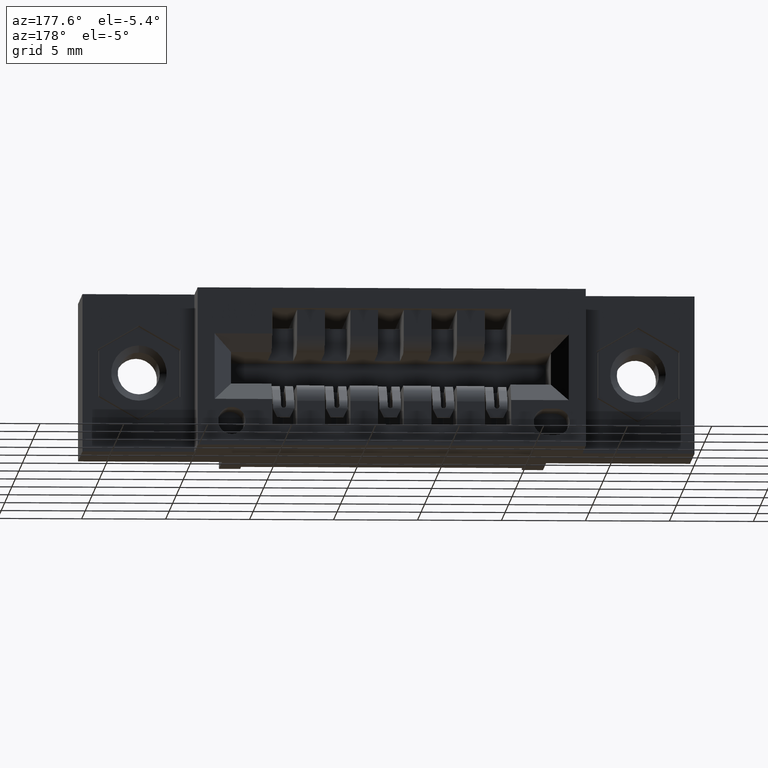
[diagram: clean part render]
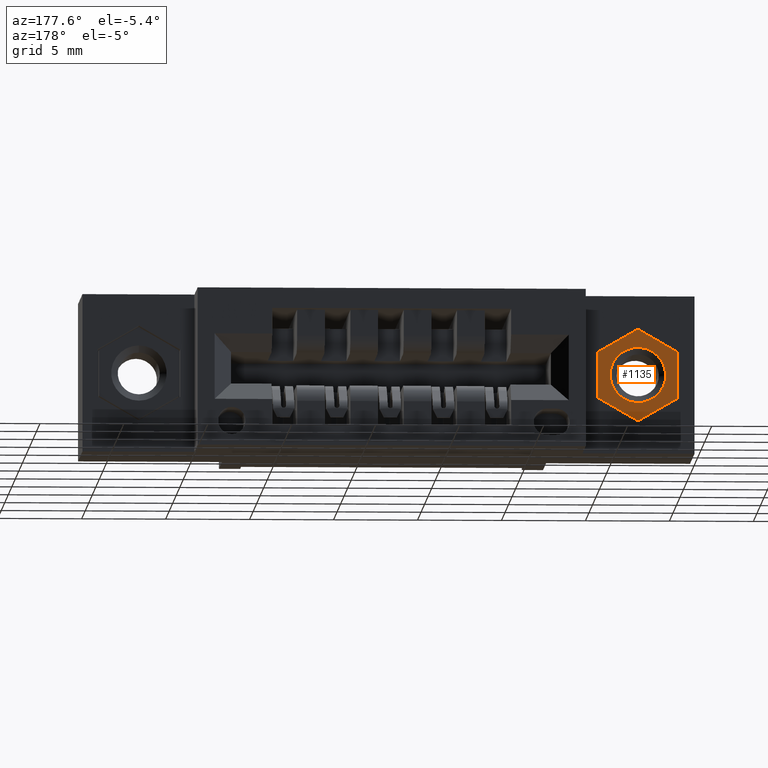
[diagram: same view with one face highlighted and labeled with its STEP entity id]
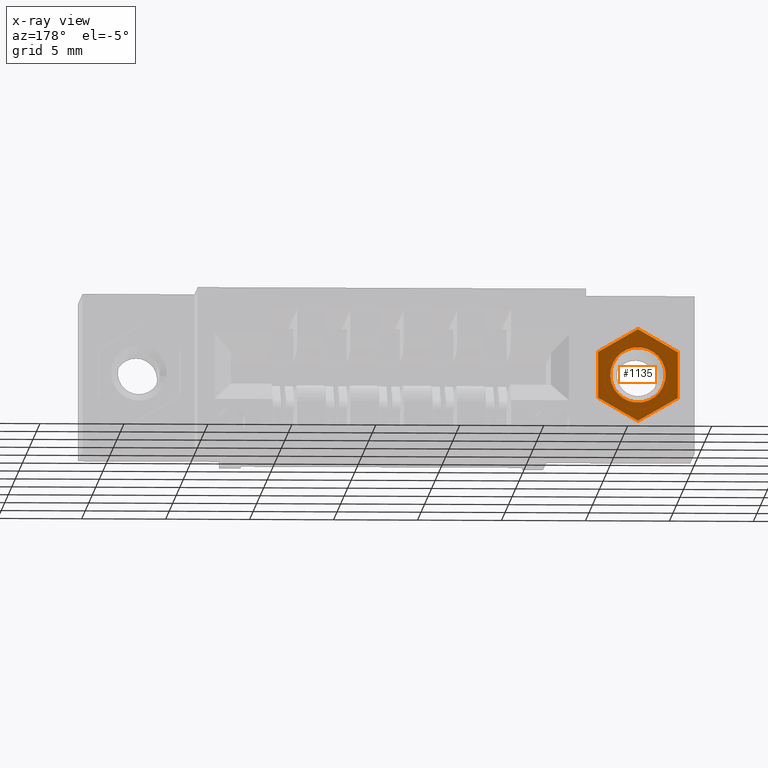
[diagram: x-ray of the same camera — body ghosted, the highlighted face saturated]
A machine part, auxiliary view. The second image highlights one B-rep face of the part: STEP entity #1135.
The next image is the same camera in x-ray: the body ghosted, the highlighted face saturated — about 0% of this face is hidden behind the body in this view.
In plain terms, the highlighted planar face has unit normal (0, -1, 0).
Its self-contained STEP definition (entity closure, byte-faithful):
#88 = CARTESIAN_POINT ( 'NONE',  ( -0.09349999999999997202, 0.0000000000000000000, -0.05398225016922977848 ) ) ;
#253 = EDGE_CURVE ( 'NONE', #3482, #256, #4407, .T. ) ;
#256 = VERTEX_POINT ( 'NONE', #808 ) ;
#509 = AXIS2_PLACEMENT_3D ( 'NONE', #3133, #6703, #867 ) ;
#790 = DIRECTION ( 'NONE',  ( 0.8660254037844389297, 0.0000000000000000000, -0.4999999999999994449 ) ) ;
#808 = CARTESIAN_POINT ( 'NONE',  ( -5.292955487724510356E-16, 0.0000000000000000000, 0.1079645003384601676 ) ) ;
#853 = DIRECTION ( 'NONE',  ( 0.8660254037844389297, 0.0000000000000000000, 0.4999999999999994449 ) ) ;
#867 = DIRECTION ( 'NONE',  ( 0.0000000000000000000, 0.0000000000000000000, 1.000000000000000000 ) ) ;
#1135 = ADVANCED_FACE ( 'NONE', ( #4564, #1711 ), #3751, .F. ) ;
#1139 = VECTOR ( 'NONE', #1918, 39.37007874015748143 ) ;
#1256 = CARTESIAN_POINT ( 'NONE',  ( 1.707404996040164512E-17, -6.829619984160658046E-17, 2.048885995248197414E-16 ) ) ;
#1495 = VERTEX_POINT ( 'NONE', #4940 ) ;
#1711 = FACE_OUTER_BOUND ( 'NONE', #6777, .T. ) ;
#1730 = ORIENTED_EDGE ( 'NONE', *, *, #4528, .F. ) ;
#1918 = DIRECTION ( 'NONE',  ( -1.276756478318928838E-15, 0.0000000000000000000, -1.000000000000000000 ) ) ;
#1929 = CARTESIAN_POINT ( 'NONE',  ( 0.09349999999999944467, 0.0000000000000000000, -0.05398225016923008379 ) ) ;
#2136 = VERTEX_POINT ( 'NONE', #7571 ) ;
#2165 = VECTOR ( 'NONE', #853, 39.37007874015748143 ) ;
#2294 = LINE ( 'NONE', #88, #7813 ) ;
#2392 = CARTESIAN_POINT ( 'NONE',  ( 3.414809992080329023E-17, 0.0000000000000000000, -0.1079645003384598484 ) ) ;
#2747 = VECTOR ( 'NONE', #790, 39.37007874015748143 ) ;
#2759 = CARTESIAN_POINT ( 'NONE',  ( -0.09349999999999994427, 0.0000000000000000000, 0.05398225016923036135 ) ) ;
#2913 = LINE ( 'NONE', #8790, #2747 ) ;
#3133 = CARTESIAN_POINT ( 'NONE',  ( 3.414809992080329023E-17, 0.0000000000000000000, -0.1079645003384598484 ) ) ;
#3135 = ORIENTED_EDGE ( 'NONE', *, *, #6424, .F. ) ;
#3283 = AXIS2_PLACEMENT_3D ( 'NONE', #1256, #4242, #7189 ) ;
#3381 = CARTESIAN_POINT ( 'NONE',  ( 1.707404996040164512E-17, -6.829619984160658046E-17, -0.06500000000000000222 ) ) ;
#3404 = VERTEX_POINT ( 'NONE', #6518 ) ;
#3482 = VERTEX_POINT ( 'NONE', #2759 ) ;
#3491 = DIRECTION ( 'NONE',  ( 0.0000000000000000000, 0.0000000000000000000, -1.000000000000000000 ) ) ;
#3532 = DIRECTION ( 'NONE',  ( -0.8660254037844384856, 0.0000000000000000000, -0.5000000000000002220 ) ) ;
#3595 = ORIENTED_EDGE ( 'NONE', *, *, #8548, .F. ) ;
#3653 = VECTOR ( 'NONE', #3532, 39.37007874015748854 ) ;
#3751 = PLANE ( 'NONE',  #509 ) ;
#3966 = CARTESIAN_POINT ( 'NONE',  ( -0.09349999999999994427, 0.0000000000000000000, 0.05398225016923036135 ) ) ;
#3971 = EDGE_CURVE ( 'NONE', #7423, #3404, #7307, .T. ) ;
#4242 = DIRECTION ( 'NONE',  ( 0.0000000000000000000, -1.000000000000000000, 0.0000000000000000000 ) ) ;
#4254 = EDGE_CURVE ( 'NONE', #1495, #7656, #7938, .T. ) ;
#4407 = LINE ( 'NONE', #3966, #2165 ) ;
#4412 = DIRECTION ( 'NONE',  ( -0.8660254037844385966, 0.0000000000000000000, 0.5000000000000000000 ) ) ;
#4528 = EDGE_CURVE ( 'NONE', #6773, #2136, #8412, .T. ) ;
#4564 = FACE_BOUND ( 'NONE', #5037, .T. ) ;
#4795 = CARTESIAN_POINT ( 'NONE',  ( 0.09349999999999998590, 0.0000000000000000000, 0.05398225016923022257 ) ) ;
#4820 = ORIENTED_EDGE ( 'NONE', *, *, #4254, .F. ) ;
#4940 = CARTESIAN_POINT ( 'NONE',  ( 2.503425415485946340E-17, -6.829619984160658046E-17, 0.06500000000000040468 ) ) ;
#5037 = EDGE_LOOP ( 'NONE', ( #3135, #4820 ) ) ;
#5268 = CARTESIAN_POINT ( 'NONE',  ( 3.414809992080329023E-17, 0.0000000000000000000, -0.1079645003384598484 ) ) ;
#6074 = ORIENTED_EDGE ( 'NONE', *, *, #3971, .F. ) ;
#6080 = EDGE_CURVE ( 'NONE', #3404, #3482, #2294, .T. ) ;
#6424 = EDGE_CURVE ( 'NONE', #7656, #1495, #7530, .T. ) ;
#6448 = AXIS2_PLACEMENT_3D ( 'NONE', #9222, #7815, #3491 ) ;
#6518 = CARTESIAN_POINT ( 'NONE',  ( -0.09349999999999997202, 0.0000000000000000000, -0.05398225016922977848 ) ) ;
#6588 = DIRECTION ( 'NONE',  ( 0.0000000000000000000, 0.0000000000000000000, 1.000000000000000000 ) ) ;
#6703 = DIRECTION ( 'NONE',  ( 0.0000000000000000000, 1.000000000000000000, 0.0000000000000000000 ) ) ;
#6773 = VERTEX_POINT ( 'NONE', #4795 ) ;
#6777 = EDGE_LOOP ( 'NONE', ( #3595, #1730, #7177, #7848, #9041, #6074 ) ) ;
#6782 = CARTESIAN_POINT ( 'NONE',  ( 0.09349999999999998590, 0.0000000000000000000, 0.05398225016923022257 ) ) ;
#7059 = LINE ( 'NONE', #1929, #3653 ) ;
#7177 = ORIENTED_EDGE ( 'NONE', *, *, #8674, .F. ) ;
#7189 = DIRECTION ( 'NONE',  ( 0.0000000000000000000, 0.0000000000000000000, -1.000000000000000000 ) ) ;
#7196 = VECTOR ( 'NONE', #4412, 39.37007874015748143 ) ;
#7307 = LINE ( 'NONE', #5268, #7196 ) ;
#7423 = VERTEX_POINT ( 'NONE', #2392 ) ;
#7530 = CIRCLE ( 'NONE', #3283, 0.06500000000000019651 ) ;
#7571 = CARTESIAN_POINT ( 'NONE',  ( 0.09349999999999944467, 0.0000000000000000000, -0.05398225016923008379 ) ) ;
#7656 = VERTEX_POINT ( 'NONE', #3381 ) ;
#7813 = VECTOR ( 'NONE', #6588, 39.37007874015748143 ) ;
#7815 = DIRECTION ( 'NONE',  ( 0.0000000000000000000, -1.000000000000000000, 0.0000000000000000000 ) ) ;
#7848 = ORIENTED_EDGE ( 'NONE', *, *, #253, .F. ) ;
#7938 = CIRCLE ( 'NONE', #6448, 0.06500000000000019651 ) ;
#8412 = LINE ( 'NONE', #6782, #1139 ) ;
#8548 = EDGE_CURVE ( 'NONE', #2136, #7423, #7059, .T. ) ;
#8674 = EDGE_CURVE ( 'NONE', #256, #6773, #2913, .T. ) ;
#8790 = CARTESIAN_POINT ( 'NONE',  ( -5.292955487724510356E-16, 0.0000000000000000000, 0.1079645003384601676 ) ) ;
#9041 = ORIENTED_EDGE ( 'NONE', *, *, #6080, .F. ) ;
#9222 = CARTESIAN_POINT ( 'NONE',  ( 1.707404996040164512E-17, -6.829619984160658046E-17, 2.048885995248197414E-16 ) ) ;